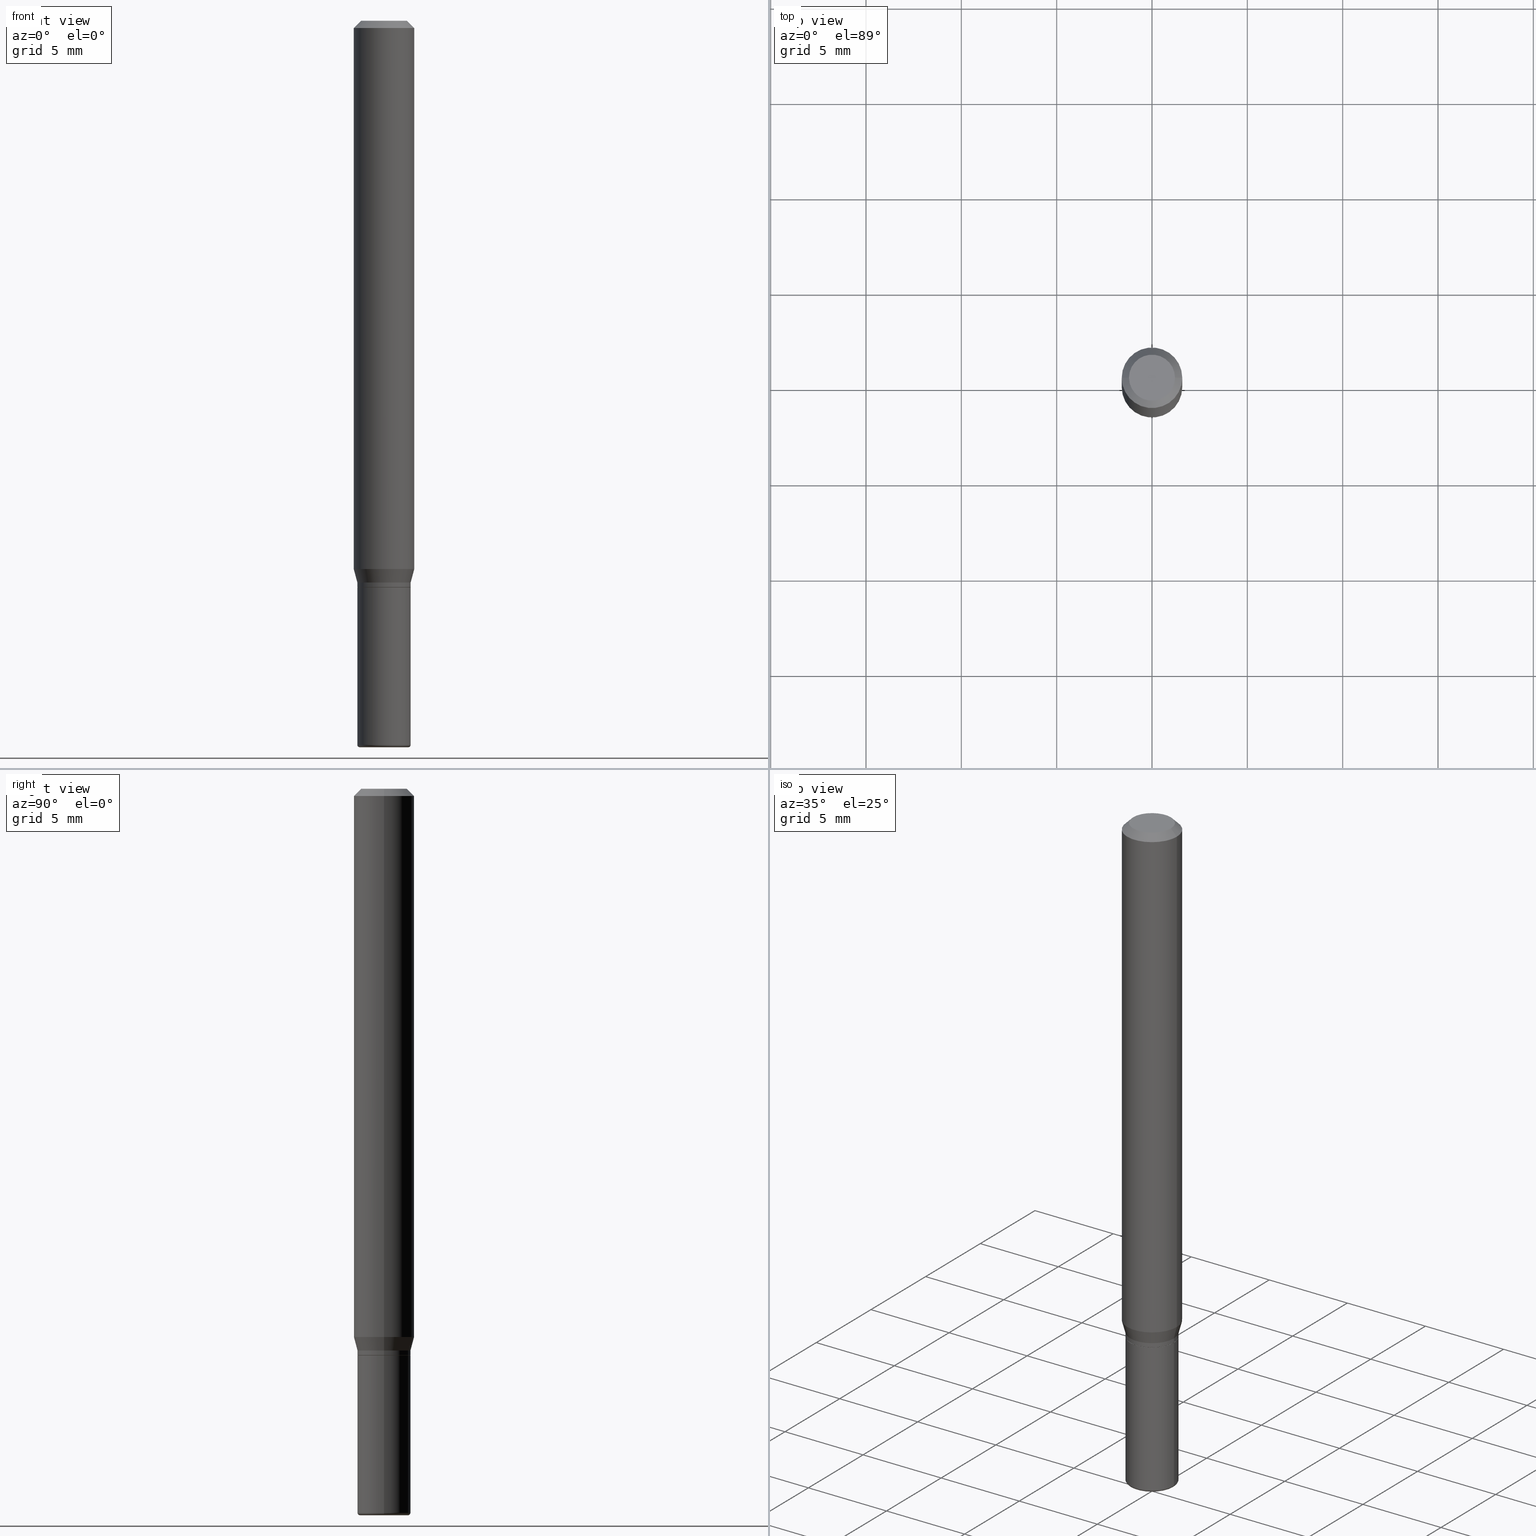
[diagram: canonical four-view strip — front | top / right | iso, engineering-drawing reading convention]
A machine part, canonical four-view strip (front | top / right | iso — engineering-drawing reading convention). The complete STEP part file that produces these views, byte-faithful:
ISO-10303-21;
HEADER;
FILE_DESCRIPTION (( 'STEP AP203' ),
    '1' );
FILE_NAME ('09237.STEP',
    '2024-02-29T23:49:10',
    ( '' ),
    ( '' ),
    'SwSTEP 2.0',
    'SolidWorks 2023',
    '' );
FILE_SCHEMA (( 'CONFIG_CONTROL_DESIGN' ));
ENDSEC;

DATA;
#1 = COORDINATED_UNIVERSAL_TIME_OFFSET ( 5, 0, .BEHIND. ) ;
#2 = CONICAL_SURFACE ( 'NONE', #51, 0.06250000000000000000, 0.7853981633974488341 ) ;
#3 = CARTESIAN_POINT ( 'NONE',  ( 3.582686580359767159E-29, -5.359686688179454114E-15, -1.500000000000000444 ) ) ;
#4 = DATE_TIME_ROLE ( 'classification_date' ) ;
#5 = ADVANCED_FACE ( 'NONE', ( #403 ), #319, .T. ) ;
#6 = APPROVAL_ROLE ( '' ) ;
#7 = CARTESIAN_POINT ( 'NONE',  ( 3.655975865246779122E-29, -5.219764601570503141E-15, -1.495000000000000107 ) ) ;
#8 = APPROVAL_STATUS ( 'not_yet_approved' ) ;
#9 = SHAPE_DEFINITION_REPRESENTATION ( #414, #367 ) ;
#10 = EDGE_LOOP ( 'NONE', ( #111, #309, #273, #97 ) ) ;
#11 = DIRECTION ( 'NONE',  ( 1.000000000000000000, -6.982962677686266711E-15, 4.876176775795935793E-29 ) ) ;
#12 = DATE_AND_TIME ( #99, #259 ) ;
#13 = CALENDAR_DATE ( 2024, 29, 2 ) ;
#14 = EDGE_CURVE ( 'NONE', #53, #423, #153, .T. ) ;
#15 = ORIENTED_EDGE ( 'NONE', *, *, #370, .F. ) ;
#16 = DIRECTION ( 'NONE',  ( 0.2588190451025209060, 1.565188264969625123E-15, 0.9659258262890682012 ) ) ;
#17 = PERSON_AND_ORGANIZATION ( #427, #366 ) ;
#18 = APPROVAL_DATE_TIME ( #391, #323 ) ;
#19 = CLOSED_SHELL ( 'NONE', ( #194, #113, #28, #34, #380, #41, #290, #509, #92, #415, #252, #5 ) ) ;
#20 = ORIENTED_EDGE ( 'NONE', *, *, #87, .T. ) ;
#21 = AXIS2_PLACEMENT_3D ( 'NONE', #344, #140, #260 ) ;
#22 = DIRECTION ( 'NONE',  ( 1.000000000000000000, -6.982962677686267499E-15, 4.876176775795936353E-29 ) ) ;
#23 = VERTEX_POINT ( 'NONE', #81 ) ;
#24 = DIRECTION ( 'NONE',  ( 1.000000000000000000, -6.982962677686276177E-15, 0.000000000000000000 ) ) ;
#25 = ORIENTED_EDGE ( 'NONE', *, *, #167, .T. ) ;
#26 = CYLINDRICAL_SURFACE ( 'NONE', #195, 0.05500000000000007661 ) ;
#27 = DIRECTION ( 'NONE',  ( -0.2588190451025209060, 5.211531920934547097E-15, 0.9659258262890682012 ) ) ;
#28 = ADVANCED_FACE ( 'NONE', ( #114 ), #2, .T. ) ;
#29 = FACE_OUTER_BOUND ( 'NONE', #202, .T. ) ;
#30 = CONICAL_SURFACE ( 'NONE', #147, 0.05450000000000009698, 0.7853981633972775267 ) ;
#31 = AXIS2_PLACEMENT_3D ( 'NONE', #90, #175, #291 ) ;
#32 = DIRECTION ( 'NONE',  ( 1.000000000000000000, -6.982962677686274599E-15, 0.000000000000000000 ) ) ;
#33 = ORIENTED_EDGE ( 'NONE', *, *, #161, .F. ) ;
#34 = ADVANCED_FACE ( 'NONE', ( #248 ), #243, .T. ) ;
#35 = CARTESIAN_POINT ( 'NONE',  ( 0.000000000000000000, 0.000000000000000000, 0.000000000000000000 ) ) ;
#36 = DIRECTION ( 'NONE',  ( 1.000000000000000000, -6.982962677686266711E-15, 4.876176775795935793E-29 ) ) ;
#37 = AXIS2_PLACEMENT_3D ( 'NONE', #98, #310, #101 ) ;
#38 = CIRCLE ( 'NONE', #342, 0.06250000000000000000 ) ;
#39 = CARTESIAN_POINT ( 'NONE',  ( 0.05500000000000007661, -3.840629472727452311E-16, 2.681897226687768680E-30 ) ) ;
#40 = EDGE_LOOP ( 'NONE', ( #493, #299 ) ) ;
#41 = ADVANCED_FACE ( 'NONE', ( #29 ), #136, .T. ) ;
#42 = DIRECTION ( 'NONE',  ( 1.000000000000000000, -6.982962677686266711E-15, 4.876176775795935793E-29 ) ) ;
#43 = LINE ( 'NONE', #210, #490 ) ;
#44 = FACE_OUTER_BOUND ( 'NONE', #442, .T. ) ;
#45 = FACE_OUTER_BOUND ( 'NONE', #348, .T. ) ;
#46 = AXIS2_PLACEMENT_3D ( 'NONE', #305, #237, #190 ) ;
#47 =( GEOMETRIC_REPRESENTATION_CONTEXT ( 3 ) GLOBAL_UNCERTAINTY_ASSIGNED_CONTEXT ( ( #339 ) ) GLOBAL_UNIT_ASSIGNED_CONTEXT ( ( #173, #292, #460 ) ) REPRESENTATION_CONTEXT ( 'NONE', 'WORKASPACE' ) );
#48 = EDGE_CURVE ( 'NONE', #176, #315, #196, .T. ) ;
#49 = PERSON_AND_ORGANIZATION ( #427, #366 ) ;
#50 = DIRECTION ( 'NONE',  ( 1.000000000000000000, 0.000000000000000000, 0.000000000000000000 ) ) ;
#51 = AXIS2_PLACEMENT_3D ( 'NONE', #322, #440, #78 ) ;
#52 = CIRCLE ( 'NONE', #430, 0.05450000000000009698 ) ;
#53 = VERTEX_POINT ( 'NONE', #512 ) ;
#54 = LINE ( 'NONE', #433, #439 ) ;
#55 = CC_DESIGN_PERSON_AND_ORGANIZATION_ASSIGNMENT ( #17, #268, ( #355 ) ) ;
#56 = PERSON_AND_ORGANIZATION ( #427, #366 ) ;
#57 = PERSON_AND_ORGANIZATION_ROLE ( 'design_supplier' ) ;
#58 = EDGE_LOOP ( 'NONE', ( #416, #69, #73, #404 ) ) ;
#59 = CARTESIAN_POINT ( 'NONE',  ( 3.668203209277632395E-31, -5.237222008264614861E-17, -0.01499999999999970281 ) ) ;
#60 = MANIFOLD_SOLID_BREP ( 'Body-Move/Copy2[1]', #254 ) ;
#61 = CARTESIAN_POINT ( 'NONE',  ( -0.05500000000000018069, -4.261600379340434577E-15, -1.495000000000000107 ) ) ;
#62 = ORIENTED_EDGE ( 'NONE', *, *, #409, .T. ) ;
#63 = DIRECTION ( 'NONE',  ( -1.000000000000000000, 6.982962677686265922E-15, -4.876176775795935793E-29 ) ) ;
#64 = AXIS2_PLACEMENT_3D ( 'NONE', #508, #365, #479 ) ;
#65 = EDGE_LOOP ( 'NONE', ( #62, #242, #357, #294 ) ) ;
#66 = CIRCLE ( 'NONE', #86, 0.05500000000000018069 ) ;
#67 = DIRECTION ( 'NONE',  ( -2.445468806185136597E-29, 3.491481338843145583E-15, 1.000000000000000000 ) ) ;
#68 = CARTESIAN_POINT ( 'NONE',  ( -0.05500000000000006967, -3.659319848389994547E-15, -1.160000000000000364 ) ) ;
#69 = ORIENTED_EDGE ( 'NONE', *, *, #230, .T. ) ;
#70 = EDGE_CURVE ( 'NONE', #23, #386, #127, .T. ) ;
#71 = DIRECTION ( 'NONE',  ( -2.445468806185136597E-29, 3.491481338843145583E-15, 1.000000000000000000 ) ) ;
#72 = CARTESIAN_POINT ( 'NONE',  ( -0.05450000000000009698, -3.697787375457225517E-15, -1.170000000000000151 ) ) ;
#73 = ORIENTED_EDGE ( 'NONE', *, *, #217, .T. ) ;
#74 = TOROIDAL_SURFACE ( 'NONE', #203, 0.05000000000000000278, 0.005000000000000177046 ) ;
#75 = CIRCLE ( 'NONE', #258, 0.05500000000000018069 ) ;
#76 = CARTESIAN_POINT ( 'NONE',  ( -0.05500000000000006967, -3.583810549235586733E-15, -1.160000000000000364 ) ) ;
#77 = ADVANCED_FACE ( 'NONE', ( #164 ), #74, .T. ) ;
#78 = DIRECTION ( 'NONE',  ( -1.000000000000000000, 6.982962677686266711E-15, 0.000000000000000000 ) ) ;
#79 = DIRECTION ( 'NONE',  ( -2.445468806185136877E-29, 3.491481338843145188E-15, 1.000000000000000000 ) ) ;
#80 = CARTESIAN_POINT ( 'NONE',  ( 0.000000000000000000, 0.000000000000000000, 0.000000000000000000 ) ) ;
#81 = CARTESIAN_POINT ( 'NONE',  ( -0.04999999999999999584, -4.855458368643558124E-15, -1.500000000000000444 ) ) ;
#82 = CIRCLE ( 'NONE', #377, 0.05500000000000009742 ) ;
#83 = FACE_OUTER_BOUND ( 'NONE', #484, .T. ) ;
#84 = DIRECTION ( 'NONE',  ( 1.000000000000000000, -6.982962677686276177E-15, 0.000000000000000000 ) ) ;
#85 = DIRECTION ( 'NONE',  ( 1.000000000000000000, -6.982962677686276177E-15, 0.000000000000000000 ) ) ;
#86 = AXIS2_PLACEMENT_3D ( 'NONE', #144, #397, #32 ) ;
#87 = EDGE_CURVE ( 'NONE', #145, #315, #43, .T. ) ;
#88 = CARTESIAN_POINT ( 'NONE',  ( 0.06250000000000000000, -4.888073874380378612E-16, -0.01499999999999970281 ) ) ;
#89 = LENGTH_MEASURE_WITH_UNIT ( LENGTH_MEASURE( 0.02539999999999999897 ), #266 );
#90 = CARTESIAN_POINT ( 'NONE',  ( 2.768294211427202327E-29, -3.952390459931242324E-15, -1.132009618943234264 ) ) ;
#91 = COORDINATED_UNIVERSAL_TIME_OFFSET ( 5, 0, .BEHIND. ) ;
#92 = ADVANCED_FACE ( 'NONE', ( #83 ), #429, .F. ) ;
#93 = DIRECTION ( 'NONE',  ( 1.000000000000000000, -6.982962677686266711E-15, 0.000000000000000000 ) ) ;
#94 = PLANE ( 'NONE',  #21 ) ;
#95 = AXIS2_PLACEMENT_3D ( 'NONE', #434, #401, #507 ) ;
#96 = CALENDAR_DATE ( 2024, 29, 2 ) ;
#97 = ORIENTED_EDGE ( 'NONE', *, *, #411, .F. ) ;
#98 = CARTESIAN_POINT ( 'NONE',  ( 2.861198503236610065E-29, -4.085033166446480067E-15, -1.170000000000000151 ) ) ;
#99 = CALENDAR_DATE ( 2024, 29, 2 ) ;
#100 = ORIENTED_EDGE ( 'NONE', *, *, #87, .F. ) ;
#101 = DIRECTION ( 'NONE',  ( 1.000000000000000000, -6.982962677686262766E-15, 0.000000000000000000 ) ) ;
#102 = DESIGN_CONTEXT ( 'detailed design', #124, 'design' ) ;
#103 = ORIENTED_EDGE ( 'NONE', *, *, #370, .T. ) ;
#104 = CARTESIAN_POINT ( 'NONE',  ( 2.861198503236610065E-29, -4.085033166446480067E-15, -1.170000000000000151 ) ) ;
#105 = AXIS2_PLACEMENT_3D ( 'NONE', #267, #499, #11 ) ;
#106 = CC_DESIGN_PERSON_AND_ORGANIZATION_ASSIGNMENT ( #135, #298, ( #488 ) ) ;
#107 = VECTOR ( 'NONE', #27, 39.37007874015748143 ) ;
#108 = ORIENTED_EDGE ( 'NONE', *, *, #205, .T. ) ;
#109 = TOROIDAL_SURFACE ( 'NONE', #318, 0.05000000000000000278, 0.005000000000000177046 ) ;
#110 = CARTESIAN_POINT ( 'NONE',  ( 0.06250000000000000000, -4.364351673553916694E-16, 3.047610484872459871E-30 ) ) ;
#111 = ORIENTED_EDGE ( 'NONE', *, *, #284, .T. ) ;
#112 = ORIENTED_EDGE ( 'NONE', *, *, #411, .T. ) ;
#113 = ADVANCED_FACE ( 'NONE', ( #177 ), #30, .T. ) ;
#114 = FACE_OUTER_BOUND ( 'NONE', #148, .T. ) ;
#115 = CIRCLE ( 'NONE', #270, 0.05500000000000009742 ) ;
#116 = DIRECTION ( 'NONE',  ( -2.445468806185136597E-29, 3.491481338843145583E-15, 1.000000000000000000 ) ) ;
#117 = CARTESIAN_POINT ( 'NONE',  ( 0.000000000000000000, 0.000000000000000000, 0.000000000000000000 ) ) ;
#118 = ORIENTED_EDGE ( 'NONE', *, *, #161, .T. ) ;
#119 = DIRECTION ( 'NONE',  ( -2.445468806185136597E-29, 3.491481338843145583E-15, 1.000000000000000000 ) ) ;
#120 = ADVANCED_FACE ( 'NONE', ( #193 ), #235, .T. ) ;
#121 = AXIS2_PLACEMENT_3D ( 'NONE', #35, #361, #36 ) ;
#122 = CIRCLE ( 'NONE', #491, 0.04999999999999999584 ) ;
#123 = CC_DESIGN_APPROVAL ( #323, ( #149 ) ) ;
#124 = APPLICATION_CONTEXT ( 'configuration controlled 3d designs of mechanical parts and assemblies' ) ;
#125 = EDGE_CURVE ( 'NONE', #192, #222, #54, .T. ) ;
#126 = DIRECTION ( 'NONE',  ( -2.445468806185136877E-29, 3.491481338843145188E-15, 1.000000000000000000 ) ) ;
#127 = CIRCLE ( 'NONE', #306, 0.005000000000000177046 ) ;
#128 = CONICAL_SURFACE ( 'NONE', #307, 0.06250000000000000000, 0.7853981633974488341 ) ;
#129 = APPROVAL_ROLE ( '' ) ;
#130 = EDGE_CURVE ( 'NONE', #159, #468, #247, .T. ) ;
#131 = DIRECTION ( 'NONE',  ( -2.445468806185136877E-29, 3.491481338843145188E-15, 1.000000000000000000 ) ) ;
#132 = CARTESIAN_POINT ( 'NONE',  ( 0.000000000000000000, 0.000000000000000000, 0.000000000000000000 ) ) ;
#133 = ORIENTED_EDGE ( 'NONE', *, *, #256, .F. ) ;
#134 = CARTESIAN_POINT ( 'NONE',  ( 2.861198503236610065E-29, -4.085033166446480067E-15, -1.170000000000000151 ) ) ;
#135 = PERSON_AND_ORGANIZATION ( #427, #366 ) ;
#136 = CONICAL_SURFACE ( 'NONE', #64, 0.05500000000000006967, 0.2617993877991495744 ) ;
#137 = AXIS2_PLACEMENT_3D ( 'NONE', #174, #381, #334 ) ;
#138 = EDGE_LOOP ( 'NONE', ( #506, #234, #369, #428 ) ) ;
#139 = CARTESIAN_POINT ( 'NONE',  ( 0.05500000000000009742, -4.467350373049804337E-15, -1.169499999999999984 ) ) ;
#140 = DIRECTION ( 'NONE',  ( -2.438088387897960049E-29, 3.491481338843145188E-15, 1.000000000000000000 ) ) ;
#141 = EDGE_LOOP ( 'NONE', ( #15, #118, #152, #227 ) ) ;
#142 = DIRECTION ( 'NONE',  ( 1.000000000000000000, -6.982962677686280121E-15, 0.000000000000000000 ) ) ;
#143 = ADVANCED_FACE ( 'NONE', ( #303 ), #150, .T. ) ;
#144 = CARTESIAN_POINT ( 'NONE',  ( 3.655975865246779122E-29, -5.219764601570503141E-15, -1.495000000000000107 ) ) ;
#145 = VERTEX_POINT ( 'NONE', #223 ) ;
#146 = FACE_OUTER_BOUND ( 'NONE', #476, .T. ) ;
#147 = AXIS2_PLACEMENT_3D ( 'NONE', #341, #394, #24 ) ;
#148 = EDGE_LOOP ( 'NONE', ( #351, #236, #445, #100 ) ) ;
#149 = PRODUCT_DEFINITION_FORMATION_WITH_SPECIFIED_SOURCE ( 'ANY', '', #169, .NOT_KNOWN. ) ;
#150 = CYLINDRICAL_SURFACE ( 'NONE', #213, 0.05500000000000009742 ) ;
#151 = EDGE_CURVE ( 'NONE', #468, #159, #276, .T. ) ;
#152 = ORIENTED_EDGE ( 'NONE', *, *, #335, .T. ) ;
#153 = LINE ( 'NONE', #72, #287 ) ;
#154 = CARTESIAN_POINT ( 'NONE',  ( 2.859975768833516703E-29, -4.083287425777058564E-15, -1.169499999999999984 ) ) ;
#155 = ORIENTED_EDGE ( 'NONE', *, *, #211, .T. ) ;
#156 = VECTOR ( 'NONE', #225, 39.37007874015748143 ) ;
#157 = DIRECTION ( 'NONE',  ( 1.000000000000000000, -6.982962677686274599E-15, 4.883557194083115704E-29 ) ) ;
#158 = CARTESIAN_POINT ( 'NONE',  ( -0.06250000000000000000, -1.558292130156881494E-15, -0.01499999999999970281 ) ) ;
#159 = VERTEX_POINT ( 'NONE', #262 ) ;
#160 = DIMENSIONAL_EXPONENTS ( 1.000000000000000000, 0.000000000000000000, 0.000000000000000000, 0.000000000000000000, 0.000000000000000000, 0.000000000000000000, 0.000000000000000000 ) ;
#161 = EDGE_CURVE ( 'NONE', #423, #199, #82, .T. ) ;
#162 = ORIENTED_EDGE ( 'NONE', *, *, #14, .F. ) ;
#163 = DIRECTION ( 'NONE',  ( 1.000000000000000000, -6.982962677686270655E-15, 0.000000000000000000 ) ) ;
#164 = FACE_OUTER_BOUND ( 'NONE', #58, .T. ) ;
#165 = CONICAL_SURFACE ( 'NONE', #297, 0.05450000000000009698, 0.7853981633972775267 ) ;
#166 = APPROVAL_PERSON_ORGANIZATION ( #168, #263, #216 ) ;
#167 = EDGE_CURVE ( 'NONE', #53, #388, #52, .T. ) ;
#168 = PERSON_AND_ORGANIZATION ( #427, #366 ) ;
#169 = PRODUCT ( '09237', '09237', '', ( #376 ) ) ;
#170 = DIRECTION ( 'NONE',  ( 1.000000000000000000, -6.982962677686265922E-15, 4.876176775795935793E-29 ) ) ;
#171 = CIRCLE ( 'NONE', #451, 0.05500000000000006967 ) ;
#172 = PERSON_AND_ORGANIZATION_ROLE ( 'design_owner' ) ;
#173 =( CONVERSION_BASED_UNIT ( 'INCH', #89 ) LENGTH_UNIT ( ) NAMED_UNIT ( #160 ) );
#174 = CARTESIAN_POINT ( 'NONE',  ( 3.840629472727732850E-16, 0.05499999999999591327, -1.170000000000000151 ) ) ;
#175 = DIRECTION ( 'NONE',  ( -2.445468806185136597E-29, 3.491481338843145583E-15, 1.000000000000000000 ) ) ;
#176 = VERTEX_POINT ( 'NONE', #337 ) ;
#177 = FACE_OUTER_BOUND ( 'NONE', #10, .T. ) ;
#178 = ORIENTED_EDGE ( 'NONE', *, *, #125, .F. ) ;
#179 = CARTESIAN_POINT ( 'NONE',  ( 0.000000000000000000, 0.000000000000000000, 0.000000000000000000 ) ) ;
#180 = CALENDAR_DATE ( 2024, 29, 2 ) ;
#181 = COORDINATED_UNIVERSAL_TIME_OFFSET ( 5, 0, .BEHIND. ) ;
#182 = FACE_OUTER_BOUND ( 'NONE', #40, .T. ) ;
#183 = AXIS2_PLACEMENT_3D ( 'NONE', #80, #286, #42 ) ;
#184 = PERSON_AND_ORGANIZATION ( #427, #366 ) ;
#185 = CC_DESIGN_APPROVAL ( #358, ( #488 ) ) ;
#186 = ORIENTED_EDGE ( 'NONE', *, *, #279, .T. ) ;
#187 = EDGE_CURVE ( 'NONE', #315, #425, #241, .T. ) ;
#188 = DIRECTION ( 'NONE',  ( 1.000000000000000000, -6.982962677686262766E-15, 0.000000000000000000 ) ) ;
#189 = ORIENTED_EDGE ( 'NONE', *, *, #335, .F. ) ;
#190 = DIRECTION ( 'NONE',  ( 1.000000000000000000, -6.982962677686262766E-15, 0.000000000000000000 ) ) ;
#191 = APPLICATION_CONTEXT ( 'configuration controlled 3d designs of mechanical parts and assemblies' ) ;
#192 = VERTEX_POINT ( 'NONE', #502 ) ;
#193 = FACE_OUTER_BOUND ( 'NONE', #208, .T. ) ;
#194 = ADVANCED_FACE ( 'NONE', ( #146 ), #26, .T. ) ;
#195 = AXIS2_PLACEMENT_3D ( 'NONE', #470, #396, #22 ) ;
#196 = LINE ( 'NONE', #280, #363 ) ;
#197 = ORIENTED_EDGE ( 'NONE', *, *, #245, .F. ) ;
#198 = LINE ( 'NONE', #68, #107 ) ;
#199 = VERTEX_POINT ( 'NONE', #139 ) ;
#200 = CARTESIAN_POINT ( 'NONE',  ( 3.655975865246779122E-29, -5.219764601570503141E-15, -1.495000000000000107 ) ) ;
#201 = CYLINDRICAL_SURFACE ( 'NONE', #183, 0.06250000000000000000 ) ;
#202 = EDGE_LOOP ( 'NONE', ( #275, #462, #346, #197 ) ) ;
#203 = AXIS2_PLACEMENT_3D ( 'NONE', #251, #518, #410 ) ;
#204 = VECTOR ( 'NONE', #459, 39.37007874015748143 ) ;
#205 = EDGE_CURVE ( 'NONE', #313, #468, #384, .T. ) ;
#206 = LOCAL_TIME ( 18, 49, 10.00000000000000000, #181 ) ;
#207 = DIRECTION ( 'NONE',  ( -2.445468806185136877E-29, 3.491481338843145188E-15, 1.000000000000000000 ) ) ;
#208 = EDGE_LOOP ( 'NONE', ( #133, #482, #108, #395 ) ) ;
#209 = DIRECTION ( 'NONE',  ( -2.445468806185136597E-29, 3.491481338843145583E-15, 1.000000000000000000 ) ) ;
#210 = CARTESIAN_POINT ( 'NONE',  ( -0.06250000000000000000, 3.840629472727455270E-16, -0.01499999999999970281 ) ) ;
#211 = EDGE_CURVE ( 'NONE', #222, #425, #257, .T. ) ;
#212 = CARTESIAN_POINT ( 'NONE',  ( 0.05500000000000018069, -5.603827548843249703E-15, -1.495000000000000107 ) ) ;
#213 = AXIS2_PLACEMENT_3D ( 'NONE', #179, #71, #349 ) ;
#214 = AXIS2_PLACEMENT_3D ( 'NONE', #312, #116, #278 ) ;
#215 = CARTESIAN_POINT ( 'NONE',  ( 2.836743815174759641E-29, -4.050118353058050785E-15, -1.160000000000000364 ) ) ;
#216 = APPROVAL_ROLE ( '' ) ;
#217 = EDGE_CURVE ( 'NONE', #265, #313, #458, .T. ) ;
#218 = COORDINATED_UNIVERSAL_TIME_OFFSET ( 5, 0, .BEHIND. ) ;
#219 = LOCAL_TIME ( 18, 49, 10.00000000000000000, #91 ) ;
#220 = PLANE ( 'NONE',  #137 ) ;
#221 = DIRECTION ( 'NONE',  ( 1.000000000000000000, -6.982962677686274599E-15, 0.000000000000000000 ) ) ;
#222 = VERTEX_POINT ( 'NONE', #387 ) ;
#223 = CARTESIAN_POINT ( 'NONE',  ( -0.04750000000000000749, 3.578768372314221353E-16, 2.731847993664239060E-16 ) ) ;
#224 = PERSON_AND_ORGANIZATION ( #427, #366 ) ;
#225 = DIRECTION ( 'NONE',  ( 0.7071067811864267805, -2.468850131080992517E-15, 0.7071067811866682540 ) ) ;
#226 = SECURITY_CLASSIFICATION_LEVEL ( 'unclassified' ) ;
#227 = ORIENTED_EDGE ( 'NONE', *, *, #492, .F. ) ;
#228 = DIRECTION ( 'NONE',  ( -6.982962677686266711E-15, -1.000000000000000000, 3.491481338843145583E-15 ) ) ;
#229 = DATE_AND_TIME ( #13, #206 ) ;
#230 = EDGE_CURVE ( 'NONE', #23, #265, #122, .T. ) ;
#231 = ORIENTED_EDGE ( 'NONE', *, *, #187, .F. ) ;
#232 = DIRECTION ( 'NONE',  ( 1.000000000000000000, -6.982962677686276177E-15, 0.000000000000000000 ) ) ;
#233 = AXIS2_PLACEMENT_3D ( 'NONE', #421, #437, #471 ) ;
#234 = ORIENTED_EDGE ( 'NONE', *, *, #70, .T. ) ;
#235 = CYLINDRICAL_SURFACE ( 'NONE', #105, 0.05500000000000009742 ) ;
#236 = ORIENTED_EDGE ( 'NONE', *, *, #330, .T. ) ;
#237 = DIRECTION ( 'NONE',  ( -2.445468806185136597E-29, 3.491481338843145583E-15, 1.000000000000000000 ) ) ;
#238 = CC_DESIGN_PERSON_AND_ORGANIZATION_ASSIGNMENT ( #184, #345, ( #149 ) ) ;
#239 = ORIENTED_EDGE ( 'NONE', *, *, #48, .F. ) ;
#240 = MANIFOLD_SOLID_BREP ( 'Body-Move/Copy2[2]', #19 ) ;
#241 = CIRCLE ( 'NONE', #399, 0.06250000000000000000 ) ;
#242 = ORIENTED_EDGE ( 'NONE', *, *, #48, .T. ) ;
#243 = CYLINDRICAL_SURFACE ( 'NONE', #121, 0.06250000000000000000 ) ;
#244 = DIRECTION ( 'NONE',  ( 1.000000000000000000, -6.982962677686270655E-15, 0.000000000000000000 ) ) ;
#245 = EDGE_CURVE ( 'NONE', #176, #222, #38, .T. ) ;
#246 = ORIENTED_EDGE ( 'NONE', *, *, #187, .T. ) ;
#247 = CIRCLE ( 'NONE', #37, 0.05500000000000000028 ) ;
#248 = FACE_OUTER_BOUND ( 'NONE', #65, .T. ) ;
#249 = CIRCLE ( 'NONE', #233, 0.04750000000000000749 ) ;
#250 = DIRECTION ( 'NONE',  ( -2.445468806185136597E-29, 3.491481338843145583E-15, 1.000000000000000000 ) ) ;
#251 = CARTESIAN_POINT ( 'NONE',  ( 3.655975865246779122E-29, -5.219764601570503141E-15, -1.495000000000000107 ) ) ;
#252 = ADVANCED_FACE ( 'NONE', ( #347 ), #165, .T. ) ;
#253 = DATE_AND_TIME ( #515, #447 ) ;
#254 = CLOSED_SHELL ( 'NONE', ( #450, #143, #516, #120, #77, #350 ) ) ;
#255 = VECTOR ( 'NONE', #407, 39.37007874015748143 ) ;
#256 = EDGE_CURVE ( 'NONE', #386, #159, #293, .T. ) ;
#257 = LINE ( 'NONE', #110, #204 ) ;
#258 = AXIS2_PLACEMENT_3D ( 'NONE', #7, #333, #221 ) ;
#259 = LOCAL_TIME ( 18, 49, 10.00000000000000000, #385 ) ;
#260 = DIRECTION ( 'NONE',  ( 1.000000000000000000, -6.982962677686265922E-15, 4.876176775795935793E-29 ) ) ;
#261 = ORIENTED_EDGE ( 'NONE', *, *, #316, .T. ) ;
#262 = CARTESIAN_POINT ( 'NONE',  ( -0.05500000000000000028, -4.261600379340436155E-15, -1.170000000000000151 ) ) ;
#263 = APPROVAL ( #452, 'UNSPECIFIED' ) ;
#264 = CARTESIAN_POINT ( 'NONE',  ( 0.05450000000000009698, -4.465604632380382834E-15, -1.170000000000000151 ) ) ;
#265 = VERTEX_POINT ( 'NONE', #431 ) ;
#266 =( LENGTH_UNIT ( ) NAMED_UNIT ( * ) SI_UNIT ( $, .METRE. ) );
#267 = CARTESIAN_POINT ( 'NONE',  ( 0.000000000000000000, 0.000000000000000000, 0.000000000000000000 ) ) ;
#268 = PERSON_AND_ORGANIZATION_ROLE ( 'classification_officer' ) ;
#269 = DIRECTION ( 'NONE',  ( -2.445468806185136597E-29, 3.491481338843145583E-15, 1.000000000000000000 ) ) ;
#270 = AXIS2_PLACEMENT_3D ( 'NONE', #154, #285, #311 ) ;
#271 = ORIENTED_EDGE ( 'NONE', *, *, #330, .F. ) ;
#272 = CARTESIAN_POINT ( 'NONE',  ( 2.859975768833516703E-29, -4.083287425777058564E-15, -1.169499999999999984 ) ) ;
#273 = ORIENTED_EDGE ( 'NONE', *, *, #279, .F. ) ;
#274 = CC_DESIGN_DATE_AND_TIME_ASSIGNMENT ( #229, #456, ( #488 ) ) ;
#275 = ORIENTED_EDGE ( 'NONE', *, *, #464, .F. ) ;
#276 = CIRCLE ( 'NONE', #46, 0.05500000000000000028 ) ;
#277 = DIRECTION ( 'NONE',  ( -0.7071067811864267805, 7.493145998869918709E-15, 0.7071067811866682540 ) ) ;
#278 = DIRECTION ( 'NONE',  ( 1.000000000000000000, -6.982962677686266711E-15, 0.000000000000000000 ) ) ;
#279 = EDGE_CURVE ( 'NONE', #199, #423, #115, .T. ) ;
#280 = CARTESIAN_POINT ( 'NONE',  ( -0.06250000000000000000, 4.440892098500626162E-16, -3.074334431409316114E-30 ) ) ;
#281 = ORIENTED_EDGE ( 'NONE', *, *, #455, .T. ) ;
#282 = DIRECTION ( 'NONE',  ( 7.105427357601001859E-15, 1.000000000000000000, -3.491481338843145583E-15 ) ) ;
#283 = CIRCLE ( 'NONE', #446, 0.05450000000000009698 ) ;
#284 = EDGE_CURVE ( 'NONE', #388, #53, #283, .T. ) ;
#285 = DIRECTION ( 'NONE',  ( -2.445468806185136597E-29, 3.491481338843145583E-15, 1.000000000000000000 ) ) ;
#286 = DIRECTION ( 'NONE',  ( -2.445468806185136597E-29, 3.491481338843145583E-15, 1.000000000000000000 ) ) ;
#287 = VECTOR ( 'NONE', #277, 39.37007874015748143 ) ;
#288 = CC_DESIGN_SECURITY_CLASSIFICATION ( #355, ( #149 ) ) ;
#289 = DIRECTION ( 'NONE',  ( 0.000000000000000000, 0.000000000000000000, 1.000000000000000000 ) ) ;
#290 = ADVANCED_FACE ( 'NONE', ( #45 ), #201, .T. ) ;
#291 = DIRECTION ( 'NONE',  ( 1.000000000000000000, -6.982962677686262766E-15, 0.000000000000000000 ) ) ;
#292 =( NAMED_UNIT ( * ) PLANE_ANGLE_UNIT ( ) SI_UNIT ( $, .RADIAN. ) );
#293 = LINE ( 'NONE', #356, #354 ) ;
#294 = ORIENTED_EDGE ( 'NONE', *, *, #211, .F. ) ;
#295 = CC_DESIGN_DATE_AND_TIME_ASSIGNMENT ( #253, #4, ( #355 ) ) ;
#296 = DIRECTION ( 'NONE',  ( -2.445468806185136877E-29, 3.491481338843145188E-15, 1.000000000000000000 ) ) ;
#297 = AXIS2_PLACEMENT_3D ( 'NONE', #104, #250, #84 ) ;
#298 = PERSON_AND_ORGANIZATION_ROLE ( 'creator' ) ;
#299 = ORIENTED_EDGE ( 'NONE', *, *, #167, .F. ) ;
#300 = CARTESIAN_POINT ( 'NONE',  ( 3.668203209277706016E-29, -5.237222008264719754E-15, -1.500000000000000444 ) ) ;
#301 = APPROVAL_DATE_TIME ( #379, #263 ) ;
#302 = ORIENTED_EDGE ( 'NONE', *, *, #130, .T. ) ;
#303 = FACE_OUTER_BOUND ( 'NONE', #383, .T. ) ;
#304 = ORIENTED_EDGE ( 'NONE', *, *, #316, .F. ) ;
#305 = CARTESIAN_POINT ( 'NONE',  ( 2.861198503236610065E-29, -4.085033166446480067E-15, -1.170000000000000151 ) ) ;
#306 = AXIS2_PLACEMENT_3D ( 'NONE', #448, #282, #327 ) ;
#307 = AXIS2_PLACEMENT_3D ( 'NONE', #510, #320, #486 ) ;
#308 = EDGE_CURVE ( 'NONE', #192, #473, #171, .T. ) ;
#309 = ORIENTED_EDGE ( 'NONE', *, *, #14, .T. ) ;
#310 = DIRECTION ( 'NONE',  ( -2.445468806185136597E-29, 3.491481338843145583E-15, 1.000000000000000000 ) ) ;
#311 = DIRECTION ( 'NONE',  ( 1.000000000000000000, -6.982962677686258033E-15, 0.000000000000000000 ) ) ;
#312 = CARTESIAN_POINT ( 'NONE',  ( 3.668203209277632395E-31, -5.237222008264614861E-17, -0.01499999999999970281 ) ) ;
#313 = VERTEX_POINT ( 'NONE', #212 ) ;
#314 = DIRECTION ( 'NONE',  ( -2.445468806185136597E-29, 3.491481338843145583E-15, 1.000000000000000000 ) ) ;
#315 = VERTEX_POINT ( 'NONE', #158 ) ;
#316 = EDGE_CURVE ( 'NONE', #145, #475, #331, .T. ) ;
#317 = AXIS2_PLACEMENT_3D ( 'NONE', #117, #514, #398 ) ;
#318 = AXIS2_PLACEMENT_3D ( 'NONE', #200, #314, #157 ) ;
#319 = CYLINDRICAL_SURFACE ( 'NONE', #317, 0.05500000000000007661 ) ;
#320 = DIRECTION ( 'NONE',  ( 2.445468806185136597E-29, -3.491481338843145583E-15, -1.000000000000000000 ) ) ;
#321 = CARTESIAN_POINT ( 'NONE',  ( -6.680649051745406845E-45, 9.538196290434862081E-31, 2.731847993664263218E-16 ) ) ;
#322 = CARTESIAN_POINT ( 'NONE',  ( 3.668203209277632395E-31, -5.237222008264614861E-17, -0.01499999999999970281 ) ) ;
#323 = APPROVAL ( #8, 'UNSPECIFIED' ) ;
#324 = FACE_OUTER_BOUND ( 'NONE', #340, .T. ) ;
#325 = EDGE_LOOP ( 'NONE', ( #162, #25, #112, #33 ) ) ;
#326 = DIRECTION ( 'NONE',  ( -2.438088387897960049E-29, 3.491481338843145188E-15, 1.000000000000000000 ) ) ;
#327 = DIRECTION ( 'NONE',  ( -1.000000000000000000, 7.105427357601061812E-15, 0.000000000000000000 ) ) ;
#328 = CIRCLE ( 'NONE', #95, 0.04999999999999999584 ) ;
#329 = LINE ( 'NONE', #489, #478 ) ;
#330 = EDGE_CURVE ( 'NONE', #475, #425, #481, .T. ) ;
#331 = CIRCLE ( 'NONE', #412, 0.04750000000000000749 ) ;
#332 = LOCAL_TIME ( 18, 49, 10.00000000000000000, #218 ) ;
#333 = DIRECTION ( 'NONE',  ( -2.445468806185136597E-29, 3.491481338843145583E-15, 1.000000000000000000 ) ) ;
#334 = DIRECTION ( 'NONE',  ( -1.000000000000000000, 6.982962677686265922E-15, -4.876176775795935793E-29 ) ) ;
#335 = EDGE_CURVE ( 'NONE', #199, #192, #372, .T. ) ;
#336 = EDGE_LOOP ( 'NONE', ( #271, #304, #20, #246 ) ) ;
#337 = CARTESIAN_POINT ( 'NONE',  ( -0.06250000000000000000, -3.508301250081179708E-15, -1.132009618943234264 ) ) ;
#338 = APPROVAL_DATE_TIME ( #12, #358 ) ;
#339 = UNCERTAINTY_MEASURE_WITH_UNIT (LENGTH_MEASURE( 1.000000000000000082E-05 ), #173, 'distance_accuracy_value', 'NONE');
#340 = EDGE_LOOP ( 'NONE', ( #496, #432, #498, #178 ) ) ;
#341 = CARTESIAN_POINT ( 'NONE',  ( 2.861198503236610065E-29, -4.085033166446480067E-15, -1.170000000000000151 ) ) ;
#342 = AXIS2_PLACEMENT_3D ( 'NONE', #389, #467, #188 ) ;
#343 = CC_DESIGN_APPROVAL ( #263, ( #355 ) ) ;
#344 = CARTESIAN_POINT ( 'NONE',  ( 2.861198503236610065E-29, -4.085033166446480067E-15, -1.170000000000000151 ) ) ;
#345 = PERSON_AND_ORGANIZATION_ROLE ( 'creator' ) ;
#346 = ORIENTED_EDGE ( 'NONE', *, *, #125, .T. ) ;
#347 = FACE_OUTER_BOUND ( 'NONE', #325, .T. ) ;
#348 = EDGE_LOOP ( 'NONE', ( #239, #402, #155, #231 ) ) ;
#349 = DIRECTION ( 'NONE',  ( 1.000000000000000000, -6.982962677686266711E-15, 4.876176775795935793E-29 ) ) ;
#350 = ADVANCED_FACE ( 'NONE', ( #368 ), #513, .F. ) ;
#351 = ORIENTED_EDGE ( 'NONE', *, *, #436, .F. ) ;
#352 = DIRECTION ( 'NONE',  ( -2.445468806185136597E-29, 3.491481338843145583E-15, 1.000000000000000000 ) ) ;
#353 = CARTESIAN_POINT ( 'NONE',  ( 0.05500000000000000028, -4.469096113719225052E-15, -1.170000000000000151 ) ) ;
#354 = VECTOR ( 'NONE', #131, 39.37007874015748143 ) ;
#355 = SECURITY_CLASSIFICATION ( '', '', #226 ) ;
#356 = CARTESIAN_POINT ( 'NONE',  ( -0.05500000000000009742, 3.907985046680557945E-16, -2.705414299640202916E-30 ) ) ;
#357 = ORIENTED_EDGE ( 'NONE', *, *, #480, .F. ) ;
#358 = APPROVAL ( #453, 'UNSPECIFIED' ) ;
#359 = ORIENTED_EDGE ( 'NONE', *, *, #151, .T. ) ;
#360 = CARTESIAN_POINT ( 'NONE',  ( 2.836743815174759641E-29, -4.050118353058050785E-15, -1.160000000000000364 ) ) ;
#361 = DIRECTION ( 'NONE',  ( -2.445468806185136597E-29, 3.491481338843145583E-15, 1.000000000000000000 ) ) ;
#362 = FACE_OUTER_BOUND ( 'NONE', #336, .T. ) ;
#363 = VECTOR ( 'NONE', #79, 39.37007874015748143 ) ;
#364 = AXIS2_PLACEMENT_3D ( 'NONE', #360, #441, #244 ) ;
#365 = DIRECTION ( 'NONE',  ( -2.445468806185136597E-29, 3.491481338843145583E-15, 1.000000000000000000 ) ) ;
#366 = ORGANIZATION ( 'UNSPECIFIED', 'UNSPECIFIED', '' ) ;
#367 = ADVANCED_BREP_SHAPE_REPRESENTATION ( '09237', ( #60, #240, #378 ), #47 ) ;
#368 = FACE_OUTER_BOUND ( 'NONE', #435, .T. ) ;
#369 = ORIENTED_EDGE ( 'NONE', *, *, #455, .F. ) ;
#370 = EDGE_CURVE ( 'NONE', #423, #473, #329, .T. ) ;
#371 = DIRECTION ( 'NONE',  ( -0.7071067811865479058, 2.468850131082261005E-15, -0.7071067811865471286 ) ) ;
#372 = LINE ( 'NONE', #39, #503 ) ;
#373 = CIRCLE ( 'NONE', #214, 0.06250000000000000000 ) ;
#374 = PRODUCT_RELATED_PRODUCT_CATEGORY ( 'detail', '', ( #169 ) ) ;
#375 = CARTESIAN_POINT ( 'NONE',  ( -0.05500000000000009742, -3.692488921109003115E-15, -1.169499999999999984 ) ) ;
#376 = MECHANICAL_CONTEXT ( 'NONE', #191, 'mechanical' ) ;
#377 = AXIS2_PLACEMENT_3D ( 'NONE', #272, #269, #497 ) ;
#378 = AXIS2_PLACEMENT_3D ( 'NONE', #132, #289, #50 ) ;
#379 = DATE_AND_TIME ( #180, #332 ) ;
#380 = ADVANCED_FACE ( 'NONE', ( #324 ), #469, .T. ) ;
#381 = DIRECTION ( 'NONE',  ( 2.438088387897960049E-29, -3.491481338843145188E-15, -1.000000000000000000 ) ) ;
#382 = DIRECTION ( 'NONE',  ( -2.445468806185136597E-29, 3.491481338843145583E-15, 1.000000000000000000 ) ) ;
#383 = EDGE_LOOP ( 'NONE', ( #281, #392, #466, #457 ) ) ;
#384 = LINE ( 'NONE', #504, #485 ) ;
#385 = COORDINATED_UNIVERSAL_TIME_OFFSET ( 5, 0, .BEHIND. ) ;
#386 = VERTEX_POINT ( 'NONE', #61 ) ;
#387 = CARTESIAN_POINT ( 'NONE',  ( 0.06250000000000000000, -4.388825627286634782E-15, -1.132009618943234264 ) ) ;
#388 = VERTEX_POINT ( 'NONE', #461 ) ;
#389 = CARTESIAN_POINT ( 'NONE',  ( 2.768294211427202327E-29, -3.952390459931242324E-15, -1.132009618943234264 ) ) ;
#390 = AXIS2_PLACEMENT_3D ( 'NONE', #483, #119, #163 ) ;
#391 = DATE_AND_TIME ( #96, #219 ) ;
#392 = ORIENTED_EDGE ( 'NONE', *, *, #256, .T. ) ;
#393 = EDGE_CURVE ( 'NONE', #386, #313, #75, .T. ) ;
#394 = DIRECTION ( 'NONE',  ( -2.445468806185136597E-29, 3.491481338843145583E-15, 1.000000000000000000 ) ) ;
#395 = ORIENTED_EDGE ( 'NONE', *, *, #130, .F. ) ;
#396 = DIRECTION ( 'NONE',  ( -2.445468806185136597E-29, 3.491481338843145583E-15, 1.000000000000000000 ) ) ;
#397 = DIRECTION ( 'NONE',  ( -2.445468806185136597E-29, 3.491481338843145583E-15, 1.000000000000000000 ) ) ;
#398 = DIRECTION ( 'NONE',  ( 1.000000000000000000, -6.982962677686267499E-15, 4.876176775795936353E-29 ) ) ;
#399 = AXIS2_PLACEMENT_3D ( 'NONE', #59, #352, #93 ) ;
#400 = CC_DESIGN_PERSON_AND_ORGANIZATION_ASSIGNMENT ( #56, #172, ( #169 ) ) ;
#401 = DIRECTION ( 'NONE',  ( -2.445468806185136597E-29, 3.491481338843145583E-15, 1.000000000000000000 ) ) ;
#402 = ORIENTED_EDGE ( 'NONE', *, *, #245, .T. ) ;
#403 = FACE_OUTER_BOUND ( 'NONE', #141, .T. ) ;
#404 = ORIENTED_EDGE ( 'NONE', *, *, #393, .F. ) ;
#405 = AXIS2_PLACEMENT_3D ( 'NONE', #419, #228, #142 ) ;
#406 = CIRCLE ( 'NONE', #31, 0.06250000000000000000 ) ;
#407 = DIRECTION ( 'NONE',  ( 0.7071067811865479058, -7.319954787623257623E-15, -0.7071067811865471286 ) ) ;
#408 = ORIENTED_EDGE ( 'NONE', *, *, #230, .F. ) ;
#409 = EDGE_CURVE ( 'NONE', #222, #176, #406, .T. ) ;
#410 = DIRECTION ( 'NONE',  ( 1.000000000000000000, -6.982962677686274599E-15, 4.883557194083115704E-29 ) ) ;
#411 = EDGE_CURVE ( 'NONE', #388, #199, #454, .T. ) ;
#412 = AXIS2_PLACEMENT_3D ( 'NONE', #321, #209, #443 ) ;
#413 = APPROVAL_PERSON_ORGANIZATION ( #224, #358, #6 ) ;
#414 = PRODUCT_DEFINITION_SHAPE ( 'NONE', 'NONE',  #488 ) ;
#415 = ADVANCED_FACE ( 'NONE', ( #182 ), #94, .F. ) ;
#416 = ORIENTED_EDGE ( 'NONE', *, *, #70, .F. ) ;
#417 = AXIS2_PLACEMENT_3D ( 'NONE', #3, #326, #170 ) ;
#418 = APPROVAL_PERSON_ORGANIZATION ( #49, #323, #129 ) ;
#419 = CARTESIAN_POINT ( 'NONE',  ( 0.05000000000000000278, -5.568912735454817265E-15, -1.495000000000000107 ) ) ;
#420 = APPLICATION_PROTOCOL_DEFINITION ( 'international standard', 'config_control_design', 1994, #191 ) ;
#421 = CARTESIAN_POINT ( 'NONE',  ( -6.680649051745406845E-45, 9.538196290434862081E-31, 2.731847993664263218E-16 ) ) ;
#422 = PERSON_AND_ORGANIZATION ( #427, #366 ) ;
#423 = VERTEX_POINT ( 'NONE', #375 ) ;
#424 = DIRECTION ( 'NONE',  ( 2.438088387897960049E-29, -3.491481338843145188E-15, -1.000000000000000000 ) ) ;
#425 = VERTEX_POINT ( 'NONE', #88 ) ;
#426 = DIRECTION ( 'NONE',  ( 1.000000000000000000, -6.982962677686275388E-15, 0.000000000000000000 ) ) ;
#427 = PERSON ( 'UNSPECIFIED', 'UNSPECIFIED', 'UNSPECIFIED', ('UNSPECIFIED'), ('UNSPECIFIED'), ('UNSPECIFIED') ) ;
#428 = ORIENTED_EDGE ( 'NONE', *, *, #217, .F. ) ;
#429 = PLANE ( 'NONE',  #495 ) ;
#430 = AXIS2_PLACEMENT_3D ( 'NONE', #134, #67, #232 ) ;
#431 = CARTESIAN_POINT ( 'NONE',  ( 0.04999999999999999584, -5.586370142149033090E-15, -1.500000000000000444 ) ) ;
#432 = ORIENTED_EDGE ( 'NONE', *, *, #464, .T. ) ;
#433 = CARTESIAN_POINT ( 'NONE',  ( 0.05500000000000006967, -4.434181300330795770E-15, -1.160000000000000364 ) ) ;
#434 = CARTESIAN_POINT ( 'NONE',  ( 3.668203209277706016E-29, -5.237222008264719754E-15, -1.500000000000000444 ) ) ;
#435 = EDGE_LOOP ( 'NONE', ( #438, #408 ) ) ;
#436 = EDGE_CURVE ( 'NONE', #475, #145, #249, .T. ) ;
#437 = DIRECTION ( 'NONE',  ( -2.445468806185136597E-29, 3.491481338843145583E-15, 1.000000000000000000 ) ) ;
#438 = ORIENTED_EDGE ( 'NONE', *, *, #444, .F. ) ;
#439 = VECTOR ( 'NONE', #16, 39.37007874015748143 ) ;
#440 = DIRECTION ( 'NONE',  ( 2.445468806185136597E-29, -3.491481338843145583E-15, -1.000000000000000000 ) ) ;
#441 = DIRECTION ( 'NONE',  ( -2.445468806185136597E-29, 3.491481338843145583E-15, 1.000000000000000000 ) ) ;
#442 = EDGE_LOOP ( 'NONE', ( #359, #302 ) ) ;
#443 = DIRECTION ( 'NONE',  ( 1.000000000000000000, -6.982962677686266711E-15, 4.852736867747365086E-29 ) ) ;
#444 = EDGE_CURVE ( 'NONE', #265, #23, #328, .T. ) ;
#445 = ORIENTED_EDGE ( 'NONE', *, *, #480, .T. ) ;
#446 = AXIS2_PLACEMENT_3D ( 'NONE', #477, #382, #85 ) ;
#447 = LOCAL_TIME ( 18, 49, 10.00000000000000000, #1 ) ;
#448 = CARTESIAN_POINT ( 'NONE',  ( -0.05000000000000000278, -4.864493233690452733E-15, -1.495000000000000107 ) ) ;
#449 = DIRECTION ( 'NONE',  ( 1.000000000000000000, -6.982962677686270655E-15, 0.000000000000000000 ) ) ;
#450 = ADVANCED_FACE ( 'NONE', ( #500 ), #109, .T. ) ;
#451 = AXIS2_PLACEMENT_3D ( 'NONE', #215, #487, #449 ) ;
#452 = APPROVAL_STATUS ( 'not_yet_approved' ) ;
#453 = APPROVAL_STATUS ( 'not_yet_approved' ) ;
#454 = LINE ( 'NONE', #264, #156 ) ;
#455 = EDGE_CURVE ( 'NONE', #313, #386, #66, .T. ) ;
#456 = DATE_TIME_ROLE ( 'creation_date' ) ;
#457 = ORIENTED_EDGE ( 'NONE', *, *, #205, .F. ) ;
#458 = CIRCLE ( 'NONE', #405, 0.005000000000000177046 ) ;
#459 = DIRECTION ( 'NONE',  ( -2.445468806185136877E-29, 3.491481338843145188E-15, 1.000000000000000000 ) ) ;
#460 =( NAMED_UNIT ( * ) SI_UNIT ( $, .STERADIAN. ) SOLID_ANGLE_UNIT ( ) );
#461 = CARTESIAN_POINT ( 'NONE',  ( 0.05450000000000009698, -4.465604632380382834E-15, -1.170000000000000151 ) ) ;
#462 = ORIENTED_EDGE ( 'NONE', *, *, #492, .T. ) ;
#463 = DIRECTION ( 'NONE',  ( -2.445468806185136597E-29, 3.491481338843145583E-15, 1.000000000000000000 ) ) ;
#464 = EDGE_CURVE ( 'NONE', #473, #176, #198, .T. ) ;
#465 = APPLICATION_PROTOCOL_DEFINITION ( 'international standard', 'config_control_design', 1994, #124 ) ;
#466 = ORIENTED_EDGE ( 'NONE', *, *, #151, .F. ) ;
#467 = DIRECTION ( 'NONE',  ( -2.445468806185136597E-29, 3.491481338843145583E-15, 1.000000000000000000 ) ) ;
#468 = VERTEX_POINT ( 'NONE', #353 ) ;
#469 = CONICAL_SURFACE ( 'NONE', #390, 0.05500000000000006967, 0.2617993877991495744 ) ;
#470 = CARTESIAN_POINT ( 'NONE',  ( 0.000000000000000000, 0.000000000000000000, 0.000000000000000000 ) ) ;
#471 = DIRECTION ( 'NONE',  ( 1.000000000000000000, -6.982962677686266711E-15, 4.852736867747365086E-29 ) ) ;
#472 = CC_DESIGN_PERSON_AND_ORGANIZATION_ASSIGNMENT ( #422, #57, ( #149 ) ) ;
#473 = VERTEX_POINT ( 'NONE', #76 ) ;
#474 = CARTESIAN_POINT ( 'NONE',  ( 0.04750000000000000749, -4.035134999187568762E-16, 2.731847993664288856E-16 ) ) ;
#475 = VERTEX_POINT ( 'NONE', #474 ) ;
#476 = EDGE_LOOP ( 'NONE', ( #186, #103, #501, #189 ) ) ;
#477 = CARTESIAN_POINT ( 'NONE',  ( 2.861198503236610065E-29, -4.085033166446480067E-15, -1.170000000000000151 ) ) ;
#478 = VECTOR ( 'NONE', #126, 39.37007874015748143 ) ;
#479 = DIRECTION ( 'NONE',  ( 1.000000000000000000, -6.982962677686270655E-15, 0.000000000000000000 ) ) ;
#480 = EDGE_CURVE ( 'NONE', #425, #315, #373, .T. ) ;
#481 = LINE ( 'NONE', #517, #255 ) ;
#482 = ORIENTED_EDGE ( 'NONE', *, *, #393, .T. ) ;
#483 = CARTESIAN_POINT ( 'NONE',  ( 2.836743815174759641E-29, -4.050118353058050785E-15, -1.160000000000000364 ) ) ;
#484 = EDGE_LOOP ( 'NONE', ( #261, #505 ) ) ;
#485 = VECTOR ( 'NONE', #296, 39.37007874015748143 ) ;
#486 = DIRECTION ( 'NONE',  ( -1.000000000000000000, 6.982962677686266711E-15, 0.000000000000000000 ) ) ;
#487 = DIRECTION ( 'NONE',  ( -2.445468806185136597E-29, 3.491481338843145583E-15, 1.000000000000000000 ) ) ;
#488 = PRODUCT_DEFINITION ( 'UNKNOWN', '', #149, #102 ) ;
#489 = CARTESIAN_POINT ( 'NONE',  ( -0.05500000000000007661, 3.907985046680556465E-16, -2.705414299640202216E-30 ) ) ;
#490 = VECTOR ( 'NONE', #371, 39.37007874015748143 ) ;
#491 = AXIS2_PLACEMENT_3D ( 'NONE', #300, #463, #426 ) ;
#492 = EDGE_CURVE ( 'NONE', #473, #192, #511, .T. ) ;
#493 = ORIENTED_EDGE ( 'NONE', *, *, #284, .F. ) ;
#494 = CARTESIAN_POINT ( 'NONE',  ( 3.316907271900976589E-16, 0.04750000000000000749, -2.925296391183627249E-17 ) ) ;
#495 = AXIS2_PLACEMENT_3D ( 'NONE', #494, #424, #63 ) ;
#496 = ORIENTED_EDGE ( 'NONE', *, *, #308, .T. ) ;
#497 = DIRECTION ( 'NONE',  ( 1.000000000000000000, -6.982962677686258033E-15, 0.000000000000000000 ) ) ;
#498 = ORIENTED_EDGE ( 'NONE', *, *, #409, .F. ) ;
#499 = DIRECTION ( 'NONE',  ( -2.445468806185136597E-29, 3.491481338843145583E-15, 1.000000000000000000 ) ) ;
#500 = FACE_OUTER_BOUND ( 'NONE', #138, .T. ) ;
#501 = ORIENTED_EDGE ( 'NONE', *, *, #308, .F. ) ;
#502 = CARTESIAN_POINT ( 'NONE',  ( 0.05500000000000006967, -4.434181300330795770E-15, -1.160000000000000364 ) ) ;
#503 = VECTOR ( 'NONE', #207, 39.37007874015748143 ) ;
#504 = CARTESIAN_POINT ( 'NONE',  ( 0.05500000000000009742, -3.840629472727453298E-16, 2.681897226687769380E-30 ) ) ;
#505 = ORIENTED_EDGE ( 'NONE', *, *, #436, .T. ) ;
#506 = ORIENTED_EDGE ( 'NONE', *, *, #444, .T. ) ;
#507 = DIRECTION ( 'NONE',  ( 1.000000000000000000, -6.982962677686275388E-15, 0.000000000000000000 ) ) ;
#508 = CARTESIAN_POINT ( 'NONE',  ( 2.836743815174759641E-29, -4.050118353058050785E-15, -1.160000000000000364 ) ) ;
#509 = ADVANCED_FACE ( 'NONE', ( #362 ), #128, .T. ) ;
#510 = CARTESIAN_POINT ( 'NONE',  ( 3.668203209277632395E-31, -5.237222008264614861E-17, -0.01499999999999970281 ) ) ;
#511 = CIRCLE ( 'NONE', #364, 0.05500000000000006967 ) ;
#512 = CARTESIAN_POINT ( 'NONE',  ( -0.05450000000000009698, -3.695138148283113527E-15, -1.170000000000000151 ) ) ;
#513 = PLANE ( 'NONE',  #417 ) ;
#514 = DIRECTION ( 'NONE',  ( -2.445468806185136597E-29, 3.491481338843145583E-15, 1.000000000000000000 ) ) ;
#515 = CALENDAR_DATE ( 2024, 29, 2 ) ;
#516 = ADVANCED_FACE ( 'NONE', ( #44 ), #220, .F. ) ;
#517 = CARTESIAN_POINT ( 'NONE',  ( 0.06250000000000000000, -4.811533449433669144E-16, -0.01499999999999970281 ) ) ;
#518 = DIRECTION ( 'NONE',  ( -2.445468806185136597E-29, 3.491481338843145583E-15, 1.000000000000000000 ) ) ;
ENDSEC;
END-ISO-10303-21;
